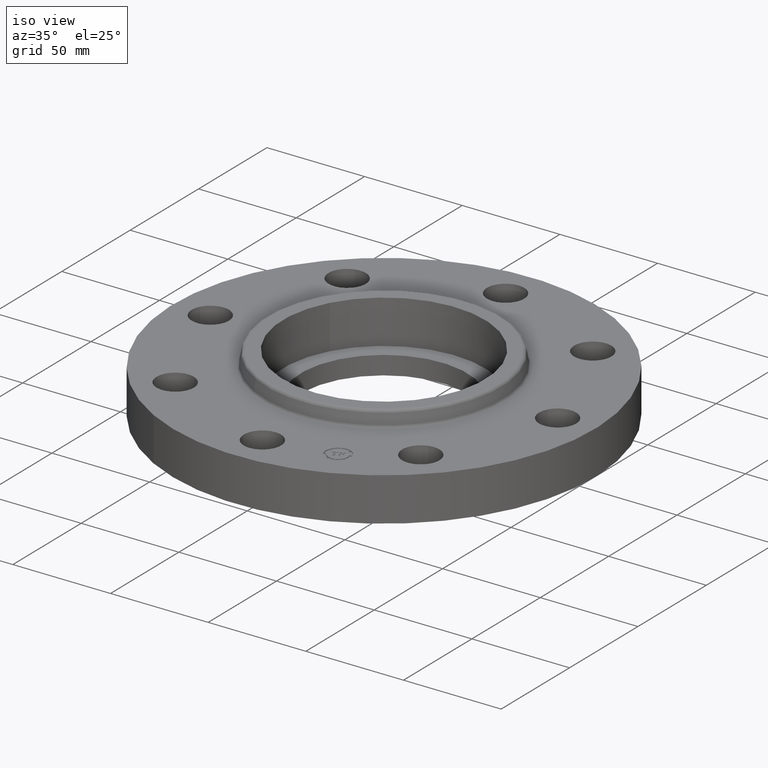
[diagram: clean part render]
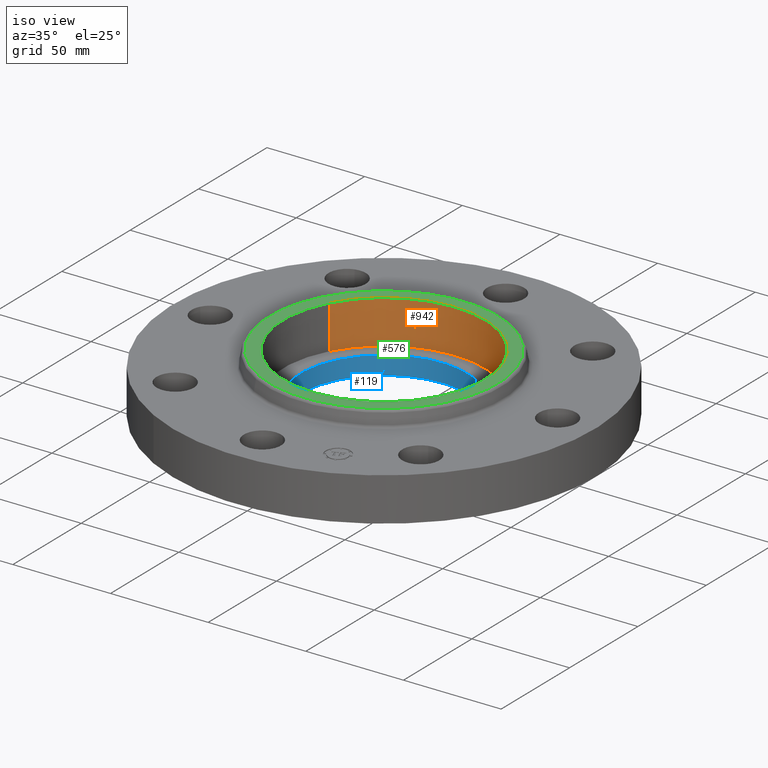
[diagram: same view with three faces highlighted in distinct colors, each labeled with its STEP entity id]
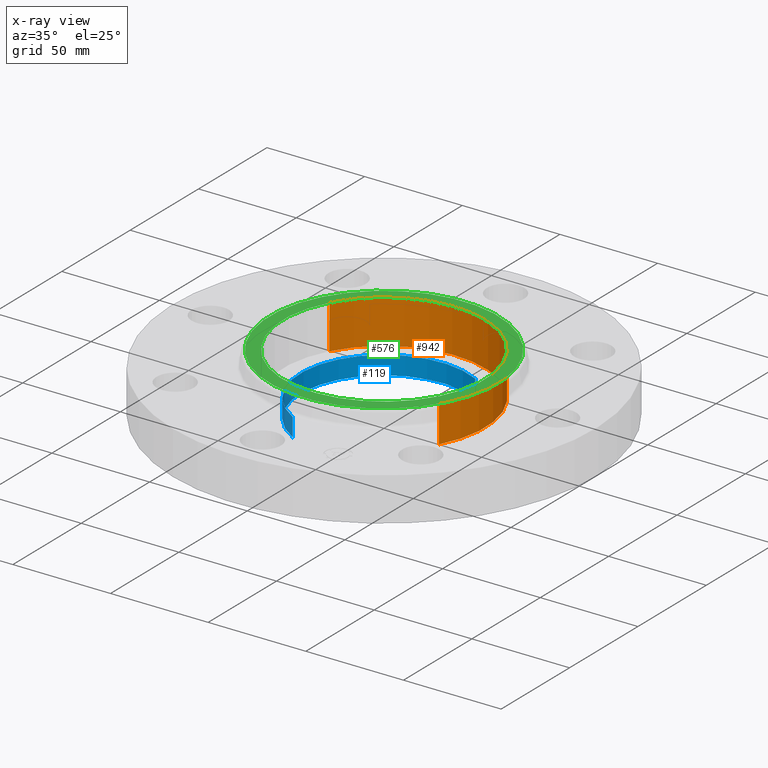
[diagram: x-ray of the same camera — body ghosted, the three highlighted faces saturated]
A machine part, iso view with three faces highlighted in distinct colors.
The next image is the same camera in x-ray (body ghosted, the three faces saturated) — at least one of them is partly hidden behind the body in this view.
Their STEP definitions:

[orange] entity #942 — the highlighted cylindrical surface (partial cylindrical patch) has radius 51.689 mm, axis along (0, 0, -1).
#42=AXIS2_PLACEMENT_3D('Circle Axis2P3D',#40,#41,$) ;
#560=AXIS2_PLACEMENT_3D('Circle Axis2P3D',#558,#559,$) ;
#924=AXIS2_PLACEMENT_3D('Cylinder Axis2P3D',#921,#922,#923) ;
#40=CARTESIAN_POINT('Axis2P3D Location',(1.39870617276E-016,-1.74838271595E-016,0.310000000001)) ;
#44=CARTESIAN_POINT('Vertex',(-1.78588051345,0.975630971063,0.310000000001)) ;
#46=CARTESIAN_POINT('Vertex',(1.78588051345,-0.975630971063,0.310000000001)) ;
#558=CARTESIAN_POINT('Axis2P3D Location',(-1.39870617276E-016,-2.79741234551E-016,1.19)) ;
#562=CARTESIAN_POINT('Vertex',(-1.78588051345,0.975630971063,1.19)) ;
#564=CARTESIAN_POINT('Vertex',(1.78588051345,-0.975630971063,1.19)) ;
#921=CARTESIAN_POINT('Axis2P3D Location',(1.39870617276E-016,-1.74838271595E-016,1.18606299213)) ;
#926=CARTESIAN_POINT('Line Origine',(-1.78588051345,0.975630971063,0.750000000003)) ;
#931=CARTESIAN_POINT('Line Origine',(1.78588051345,-0.975630971063,0.750000000003)) ;
#41=DIRECTION('Axis2P3D Direction',(0.,0.,-0.0393700787402)) ;
#559=DIRECTION('Axis2P3D Direction',(0.,0.,-0.0393700787402)) ;
#922=DIRECTION('Axis2P3D Direction',(0.,0.,-0.0393700787402)) ;
#923=DIRECTION('Axis2P3D XDirection',(0.0345504945626,-0.0188750212049,0.)) ;
#927=DIRECTION('Vector Direction',(0.,0.,-0.0393700787402)) ;
#932=DIRECTION('Vector Direction',(0.,0.,-0.0393700787402)) ;
#928=VECTOR('Line Direction',#927,0.0393700787402) ;
#933=VECTOR('Line Direction',#932,0.0393700787402) ;
#937=ORIENTED_EDGE('',*,*,#566,.F.) ;
#938=ORIENTED_EDGE('',*,*,#930,.F.) ;
#939=ORIENTED_EDGE('',*,*,#48,.T.) ;
#940=ORIENTED_EDGE('',*,*,#935,.T.) ;
#942=ADVANCED_FACE('PartBody',(#941),#925,.F.) ;
#43=CIRCLE('generated circle',#42,2.03500000001) ;
#561=CIRCLE('generated circle',#560,2.03500000001) ;
#925=CYLINDRICAL_SURFACE('generated cylinder',#924,2.03500000001) ;
#48=EDGE_CURVE('',#45,#47,#43,.T.) ;
#566=EDGE_CURVE('',#563,#565,#561,.T.) ;
#930=EDGE_CURVE('',#45,#563,#929,.F.) ;
#935=EDGE_CURVE('',#47,#565,#934,.F.) ;
#936=EDGE_LOOP('',(#937,#938,#939,#940)) ;
#941=FACE_OUTER_BOUND('',#936,.T.) ;
#929=LINE('Line',#926,#928) ;
#934=LINE('Line',#931,#933) ;
#45=VERTEX_POINT('',#44) ;
#47=VERTEX_POINT('',#46) ;
#563=VERTEX_POINT('',#562) ;
#565=VERTEX_POINT('',#564) ;

[blue] entity #119 — the highlighted cylindrical surface (partial cylindrical patch) has radius 42.7228 mm, axis along (0, 0, -1).
#60=AXIS2_PLACEMENT_3D('Circle Axis2P3D',#58,#59,$) ;
#80=AXIS2_PLACEMENT_3D('Cylinder Axis2P3D',#77,#78,#79) ;
#110=AXIS2_PLACEMENT_3D('Circle Axis2P3D',#108,#109,$) ;
#58=CARTESIAN_POINT('Axis2P3D Location',(2.79741234551E-016,-3.49676543189E-017,0.310000000001)) ;
#62=CARTESIAN_POINT('Vertex',(-0.806393755935,-1.47609386911,0.310000000001)) ;
#64=CARTESIAN_POINT('Vertex',(0.806393755935,1.47609386911,0.310000000001)) ;
#77=CARTESIAN_POINT('Axis2P3D Location',(0.,0.,0.563750000002)) ;
#82=CARTESIAN_POINT('Line Origine',(0.806393755935,1.47609386911,0.12375)) ;
#86=CARTESIAN_POINT('Vertex',(0.806393755935,1.47609386911,-0.0625000000003)) ;
#93=CARTESIAN_POINT('Vertex',(-0.806393755935,-1.47609386911,-0.0625000000003)) ;
#96=CARTESIAN_POINT('Line Origine',(-0.806393755935,-1.47609386911,0.12375)) ;
#108=CARTESIAN_POINT('Axis2P3D Location',(0.,0.,-0.0625000000003)) ;
#59=DIRECTION('Axis2P3D Direction',(0.,0.,-0.0393700787402)) ;
#78=DIRECTION('Axis2P3D Direction',(0.,0.,-0.0393700787402)) ;
#79=DIRECTION('Axis2P3D XDirection',(-0.0188750212049,-0.0345504945626,0.)) ;
#83=DIRECTION('Vector Direction',(0.,0.,-0.0393700787402)) ;
#97=DIRECTION('Vector Direction',(0.,0.,-0.0393700787402)) ;
#109=DIRECTION('Axis2P3D Direction',(0.,0.,-0.0393700787402)) ;
#84=VECTOR('Line Direction',#83,0.0393700787402) ;
#98=VECTOR('Line Direction',#97,0.0393700787402) ;
#114=ORIENTED_EDGE('',*,*,#100,.T.) ;
#115=ORIENTED_EDGE('',*,*,#112,.T.) ;
#116=ORIENTED_EDGE('',*,*,#88,.F.) ;
#117=ORIENTED_EDGE('',*,*,#66,.F.) ;
#119=ADVANCED_FACE('PartBody',(#118),#81,.F.) ;
#61=CIRCLE('generated circle',#60,1.68200000001) ;
#111=CIRCLE('generated circle',#110,1.68200000001) ;
#81=CYLINDRICAL_SURFACE('generated cylinder',#80,1.68200000001) ;
#66=EDGE_CURVE('',#63,#65,#61,.T.) ;
#88=EDGE_CURVE('',#65,#87,#85,.T.) ;
#100=EDGE_CURVE('',#63,#94,#99,.T.) ;
#112=EDGE_CURVE('',#94,#87,#111,.T.) ;
#113=EDGE_LOOP('',(#114,#115,#116,#117)) ;
#118=FACE_OUTER_BOUND('',#113,.T.) ;
#85=LINE('Line',#82,#84) ;
#99=LINE('Line',#96,#98) ;
#63=VERTEX_POINT('',#62) ;
#65=VERTEX_POINT('',#64) ;
#87=VERTEX_POINT('',#86) ;
#94=VERTEX_POINT('',#93) ;

[green] entity #576 — the highlighted planar face has unit normal (0, 0, -1).
#520=AXIS2_PLACEMENT_3D('Circle Axis2P3D',#518,#519,$) ;
#539=AXIS2_PLACEMENT_3D('Circle Axis2P3D',#537,#538,$) ;
#552=AXIS2_PLACEMENT_3D('Plane Axis2P3D',#549,#550,#551) ;
#560=AXIS2_PLACEMENT_3D('Circle Axis2P3D',#558,#559,$) ;
#569=AXIS2_PLACEMENT_3D('Circle Axis2P3D',#567,#568,$) ;
#515=CARTESIAN_POINT('Vertex',(1.1026752189,2.01843344924,1.19)) ;
#518=CARTESIAN_POINT('Axis2P3D Location',(0.,0.,1.19)) ;
#522=CARTESIAN_POINT('Vertex',(-1.1026752189,-2.01843344924,1.19)) ;
#537=CARTESIAN_POINT('Axis2P3D Location',(0.,0.,1.19)) ;
#549=CARTESIAN_POINT('Axis2P3D Location',(0.,2.29999265812,1.19)) ;
#558=CARTESIAN_POINT('Axis2P3D Location',(-1.39870617276E-016,-2.79741234551E-016,1.19)) ;
#562=CARTESIAN_POINT('Vertex',(-1.78588051345,0.975630971063,1.19)) ;
#564=CARTESIAN_POINT('Vertex',(1.78588051345,-0.975630971063,1.19)) ;
#567=CARTESIAN_POINT('Axis2P3D Location',(0.,2.79741234551E-016,1.19)) ;
#519=DIRECTION('Axis2P3D Direction',(0.,0.,-0.0393700787402)) ;
#538=DIRECTION('Axis2P3D Direction',(0.,0.,-0.0393700787402)) ;
#550=DIRECTION('Axis2P3D Direction',(0.,0.,-0.0393700787402)) ;
#551=DIRECTION('Axis2P3D XDirection',(0.0393700787402,0.,0.)) ;
#559=DIRECTION('Axis2P3D Direction',(0.,0.,-0.0393700787402)) ;
#568=DIRECTION('Axis2P3D Direction',(0.,0.,-0.0393700787402)) ;
#555=ORIENTED_EDGE('',*,*,#524,.F.) ;
#556=ORIENTED_EDGE('',*,*,#541,.F.) ;
#573=ORIENTED_EDGE('',*,*,#566,.T.) ;
#574=ORIENTED_EDGE('',*,*,#571,.T.) ;
#575=FACE_BOUND('',#572,.T.) ;
#576=ADVANCED_FACE('PartBody',(#557,#575),#553,.F.) ;
#521=CIRCLE('generated circle',#520,2.29999265812) ;
#540=CIRCLE('generated circle',#539,2.29999265812) ;
#561=CIRCLE('generated circle',#560,2.03500000001) ;
#570=CIRCLE('generated circle',#569,2.03500000001) ;
#524=EDGE_CURVE('',#516,#523,#521,.T.) ;
#541=EDGE_CURVE('',#523,#516,#540,.T.) ;
#566=EDGE_CURVE('',#563,#565,#561,.T.) ;
#571=EDGE_CURVE('',#565,#563,#570,.T.) ;
#554=EDGE_LOOP('',(#555,#556)) ;
#572=EDGE_LOOP('',(#573,#574)) ;
#557=FACE_OUTER_BOUND('',#554,.T.) ;
#553=PLANE('',#552) ;
#516=VERTEX_POINT('',#515) ;
#523=VERTEX_POINT('',#522) ;
#563=VERTEX_POINT('',#562) ;
#565=VERTEX_POINT('',#564) ;